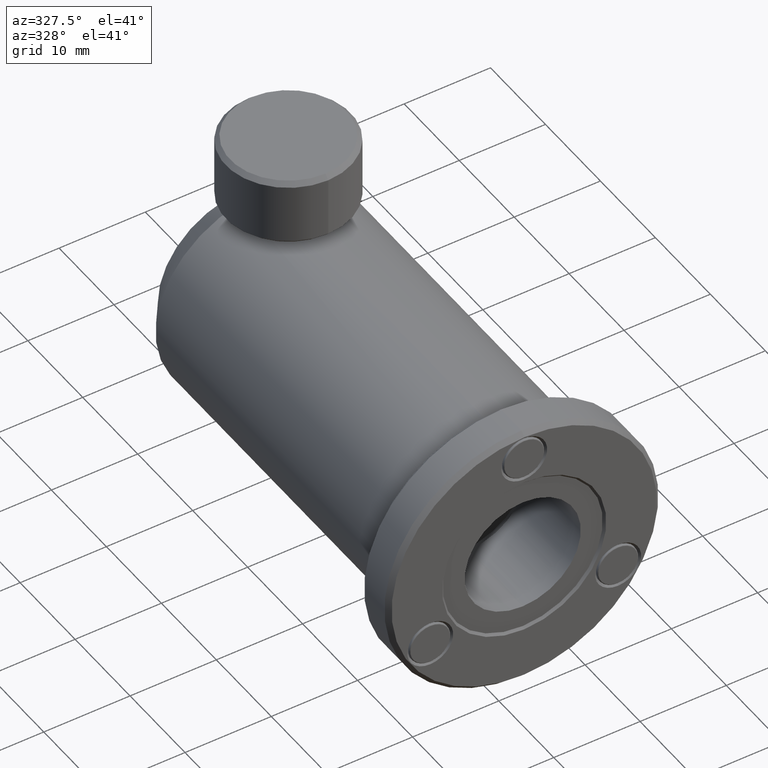
[diagram: clean part render]
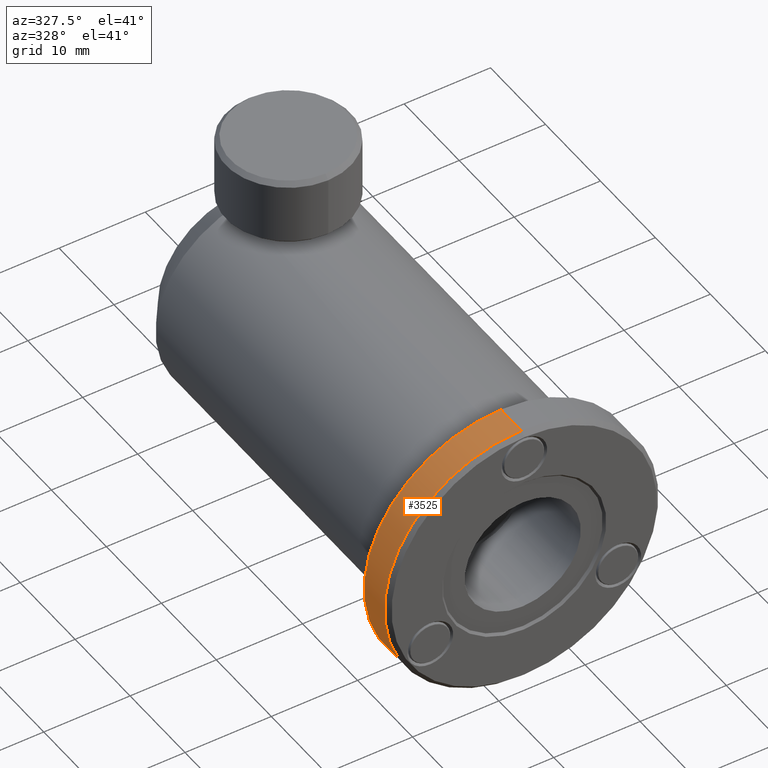
[diagram: same view with one face highlighted and labeled with its STEP entity id]
A machine part, auxiliary view. The second image highlights one B-rep face of the part: STEP entity #3525.
In plain terms, the highlighted cylindrical surface (partial cylindrical patch) has radius 15.875 mm, axis along (-0, -1, -0).
Its self-contained STEP definition (entity closure, byte-faithful):
#7 = CARTESIAN_POINT ( 'NONE',  ( -16.77690416192945100, -15.35683156452665400, 11.84596359904499100 ) ) ;
#129 = VECTOR ( 'NONE', #3539, 1000.000000000000000 ) ;
#133 = EDGE_CURVE ( 'NONE', #1943, #3422, #506, .T. ) ;
#219 = VERTEX_POINT ( 'NONE', #1923 ) ;
#228 = DIRECTION ( 'NONE',  ( 0.0000000000000000000, 0.0000000000000000000, -1.000000000000000000 ) ) ;
#236 = CARTESIAN_POINT ( 'NONE',  ( -16.77690416192944800, -15.35683156452665400, 27.72096359904498200 ) ) ;
#273 = EDGE_CURVE ( 'NONE', #1364, #1943, #2807, .T. ) ;
#506 = LINE ( 'NONE', #1338, #1079 ) ;
#570 = DIRECTION ( 'NONE',  ( -0.0000000000000000000, -1.000000000000000000, -0.0000000000000000000 ) ) ;
#972 = ORIENTED_EDGE ( 'NONE', *, *, #1891, .F. ) ;
#1010 = ORIENTED_EDGE ( 'NONE', *, *, #2519, .F. ) ;
#1044 = CIRCLE ( 'NONE', #2350, 15.87499999999999600 ) ;
#1070 = DIRECTION ( 'NONE',  ( -0.0000000000000000000, -1.000000000000000000, -0.0000000000000000000 ) ) ;
#1079 = VECTOR ( 'NONE', #2666, 1000.000000000000000 ) ;
#1137 = ORIENTED_EDGE ( 'NONE', *, *, #273, .T. ) ;
#1221 = CARTESIAN_POINT ( 'NONE',  ( -16.77690416192945100, -15.35683156452665400, -4.029036400955003000 ) ) ;
#1338 = CARTESIAN_POINT ( 'NONE',  ( -16.77690416192945100, -19.54783156452665300, -4.029036400955003000 ) ) ;
#1364 = VERTEX_POINT ( 'NONE', #236 ) ;
#1595 = LINE ( 'NONE', #3529, #129 ) ;
#1664 = FACE_OUTER_BOUND ( 'NONE', #3100, .T. ) ;
#1675 = CARTESIAN_POINT ( 'NONE',  ( -16.77690416192945100, -19.03983156452665400, -4.029036400955006600 ) ) ;
#1781 = ORIENTED_EDGE ( 'NONE', *, *, #133, .T. ) ;
#1802 = CARTESIAN_POINT ( 'NONE',  ( -16.77690416192945100, -19.54783156452665300, 11.84596359904499100 ) ) ;
#1891 = EDGE_CURVE ( 'NONE', #219, #3422, #1044, .T. ) ;
#1923 = CARTESIAN_POINT ( 'NONE',  ( -16.77690416192944800, -19.03983156452665400, 27.72096359904498900 ) ) ;
#1943 = VERTEX_POINT ( 'NONE', #1221 ) ;
#2209 = AXIS2_PLACEMENT_3D ( 'NONE', #1802, #2365, #2933 ) ;
#2350 = AXIS2_PLACEMENT_3D ( 'NONE', #2427, #1070, #228 ) ;
#2365 = DIRECTION ( 'NONE',  ( -0.0000000000000000000, -1.000000000000000000, -0.0000000000000000000 ) ) ;
#2427 = CARTESIAN_POINT ( 'NONE',  ( -16.77690416192945100, -19.03983156452665400, 11.84596359904499100 ) ) ;
#2519 = EDGE_CURVE ( 'NONE', #1364, #219, #1595, .T. ) ;
#2666 = DIRECTION ( 'NONE',  ( -0.0000000000000000000, -1.000000000000000000, -0.0000000000000000000 ) ) ;
#2807 = CIRCLE ( 'NONE', #3188, 15.87499999999999300 ) ;
#2933 = DIRECTION ( 'NONE',  ( 0.0000000000000000000, 0.0000000000000000000, -1.000000000000000000 ) ) ;
#2992 = CYLINDRICAL_SURFACE ( 'NONE', #2209, 15.87499999999999300 ) ;
#3059 = DIRECTION ( 'NONE',  ( 0.0000000000000000000, 0.0000000000000000000, -1.000000000000000000 ) ) ;
#3100 = EDGE_LOOP ( 'NONE', ( #1010, #1137, #1781, #972 ) ) ;
#3188 = AXIS2_PLACEMENT_3D ( 'NONE', #7, #570, #3059 ) ;
#3422 = VERTEX_POINT ( 'NONE', #1675 ) ;
#3525 = ADVANCED_FACE ( 'NONE', ( #1664 ), #2992, .T. ) ;
#3529 = CARTESIAN_POINT ( 'NONE',  ( -16.77690416192944800, -19.54783156452665300, 27.72096359904498200 ) ) ;
#3539 = DIRECTION ( 'NONE',  ( -0.0000000000000000000, -1.000000000000000000, -0.0000000000000000000 ) ) ;